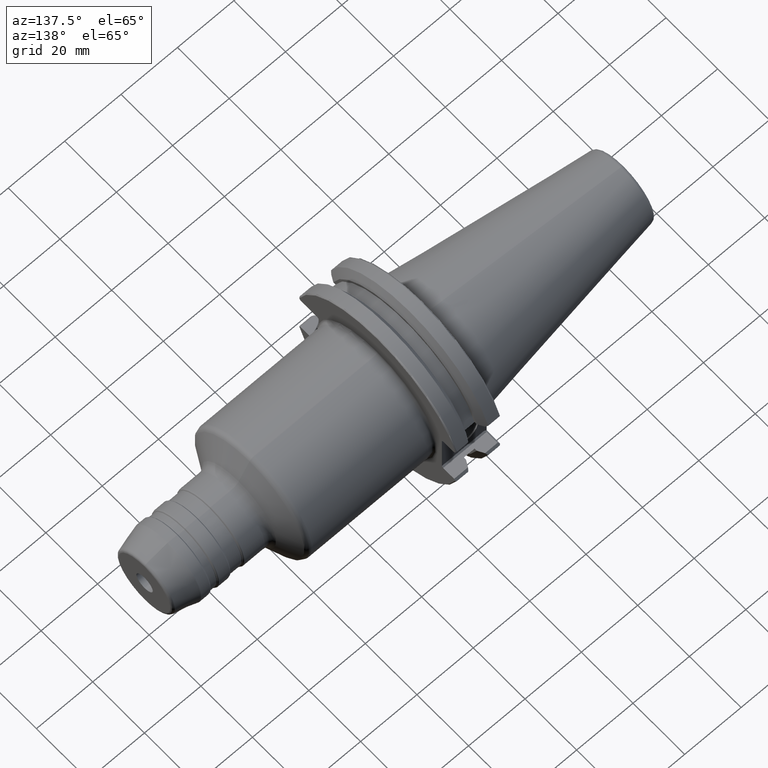
[diagram: clean part render]
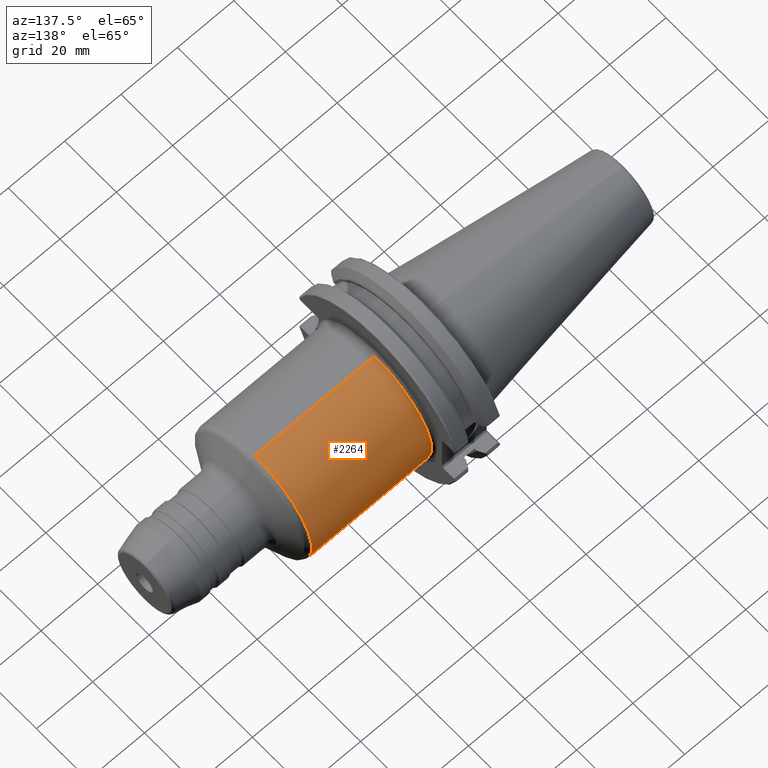
[diagram: same view with one face highlighted and labeled with its STEP entity id]
A machine part, auxiliary view. The second image highlights one B-rep face of the part: STEP entity #2264.
In plain terms, the highlighted cylindrical surface (partial cylindrical patch) has radius 22.225 mm, axis along (1, 0, 0).
Its self-contained STEP definition (entity closure, byte-faithful):
#217=CARTESIAN_POINT('',(2.0075E1,0.E0,0.E0));
#218=DIRECTION('',(1.E0,0.E0,0.E0));
#219=DIRECTION('',(0.E0,0.E0,-1.E0));
#220=AXIS2_PLACEMENT_3D('',#217,#218,#219);
#237=DIRECTION('',(-1.E0,0.E0,0.E0));
#238=VECTOR('',#237,4.256924322835E1);
#239=CARTESIAN_POINT('',(6.264424322835E1,0.E0,-2.2225E1));
#240=LINE('',#239,#238);
#241=DIRECTION('',(-1.E0,0.E0,0.E0));
#242=VECTOR('',#241,4.256924322835E1);
#243=CARTESIAN_POINT('',(6.264424322835E1,0.E0,2.2225E1));
#244=LINE('',#243,#242);
#250=CARTESIAN_POINT('',(6.264424322835E1,0.E0,0.E0));
#251=DIRECTION('',(1.E0,0.E0,0.E0));
#252=DIRECTION('',(0.E0,0.E0,-1.E0));
#253=AXIS2_PLACEMENT_3D('',#250,#251,#252);
#1786=CARTESIAN_POINT('',(6.264424322835E1,0.E0,-2.2225E1));
#1787=VERTEX_POINT('',#1786);
#1788=CARTESIAN_POINT('',(2.0075E1,0.E0,-2.2225E1));
#1789=VERTEX_POINT('',#1788);
#1844=CARTESIAN_POINT('',(6.264424322835E1,0.E0,2.2225E1));
#1845=VERTEX_POINT('',#1844);
#1846=CARTESIAN_POINT('',(2.0075E1,0.E0,2.2225E1));
#1847=VERTEX_POINT('',#1846);
#2252=CARTESIAN_POINT('',(1.49475E1,0.E0,0.E0));
#2253=DIRECTION('',(1.E0,0.E0,0.E0));
#2254=DIRECTION('',(0.E0,0.E0,1.E0));
#2255=AXIS2_PLACEMENT_3D('',#2252,#2253,#2254);
#2256=CYLINDRICAL_SURFACE('',#2255,2.2225E1);
#2257=ORIENTED_EDGE('',*,*,#2242,.F.);
#2259=ORIENTED_EDGE('',*,*,#2258,.T.);
#2260=ORIENTED_EDGE('',*,*,#2245,.T.);
#2261=ORIENTED_EDGE('',*,*,#2214,.F.);
#2262=EDGE_LOOP('',(#2257,#2259,#2260,#2261));
#2263=FACE_OUTER_BOUND('',#2262,.F.);
#2264=ADVANCED_FACE('',(#2263),#2256,.T.);
#221=CIRCLE('',#220,2.2225E1);
#254=CIRCLE('',#253,2.2225E1);
#2214=EDGE_CURVE('',#1789,#1847,#221,.T.);
#2242=EDGE_CURVE('',#1787,#1789,#240,.T.);
#2245=EDGE_CURVE('',#1845,#1847,#244,.T.);
#2258=EDGE_CURVE('',#1787,#1845,#254,.T.);